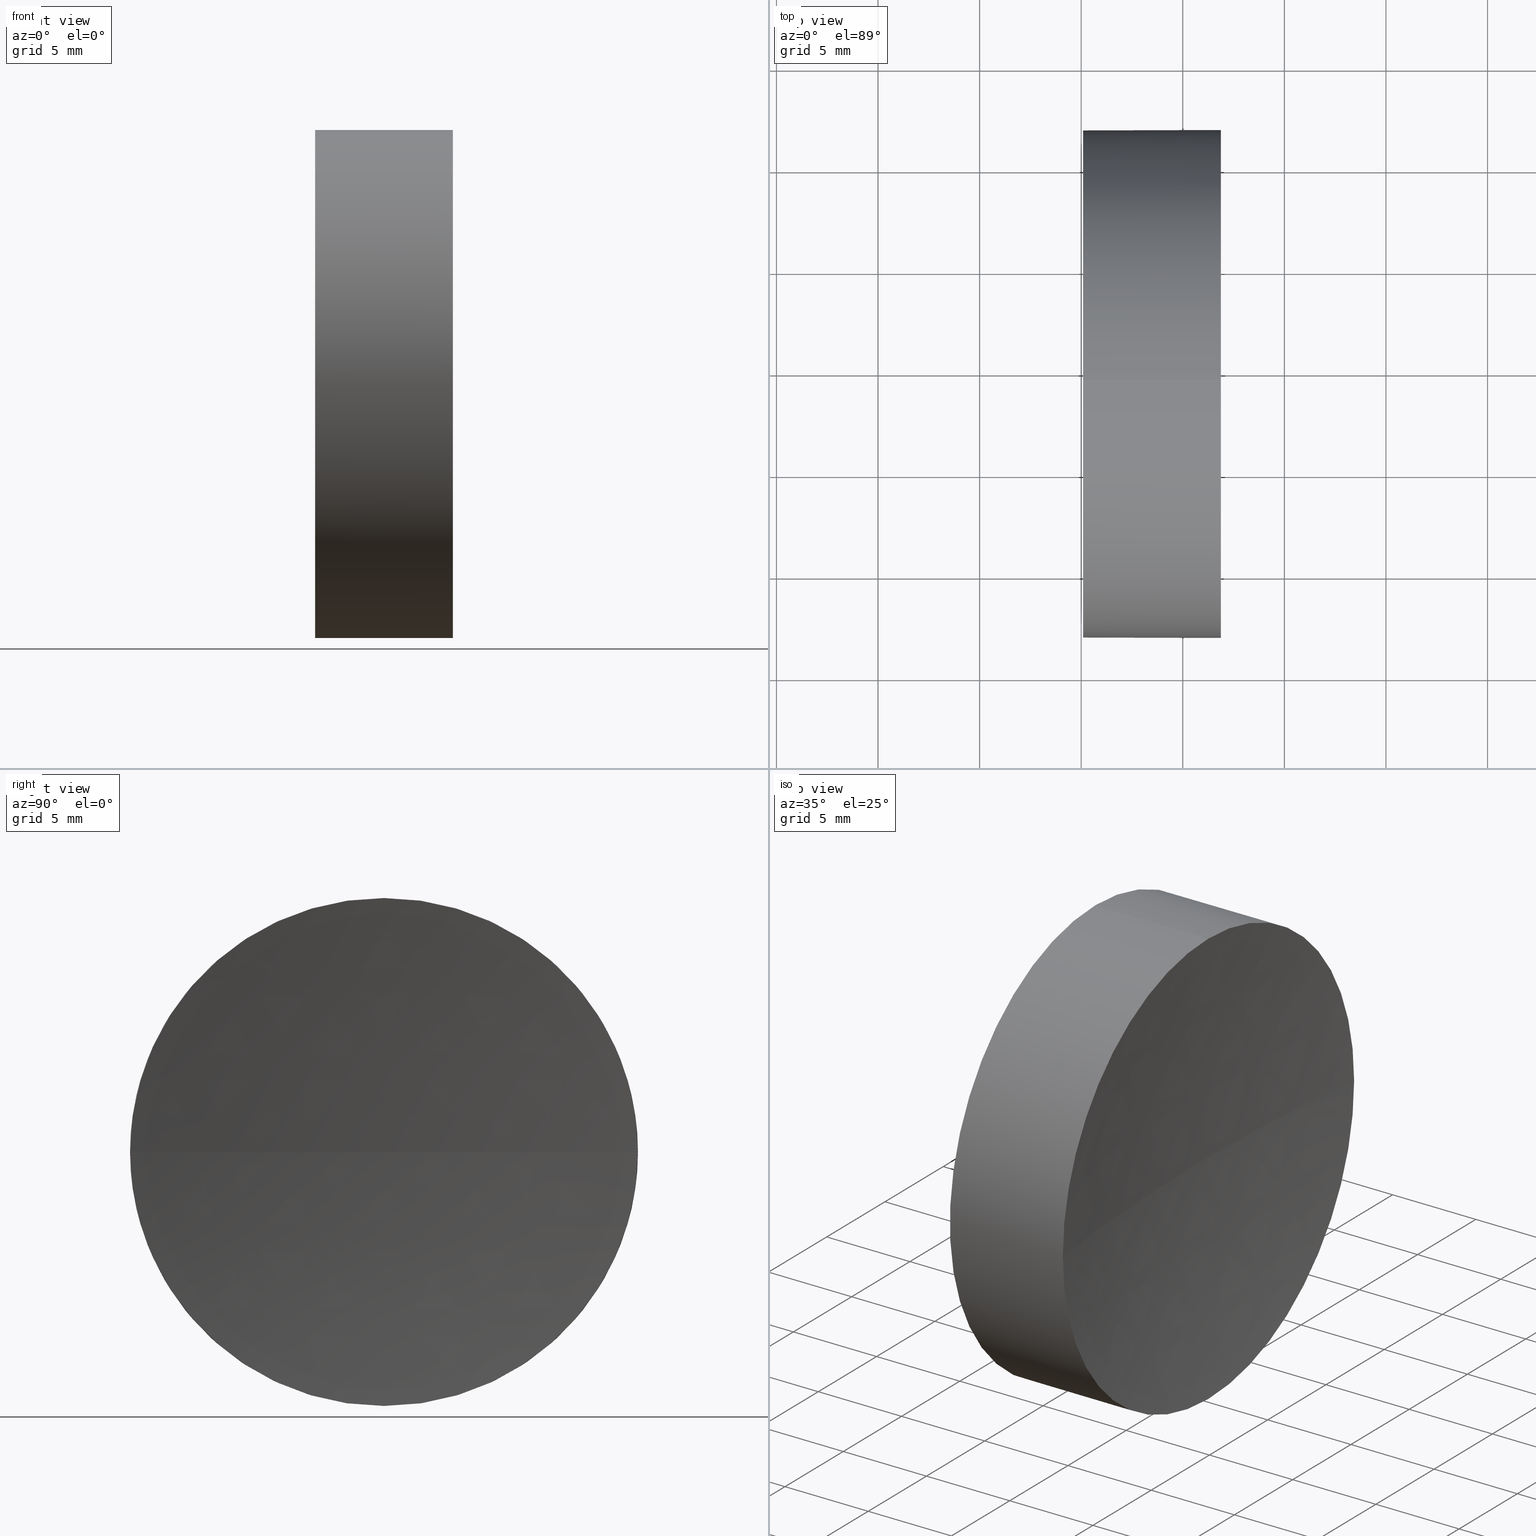
[diagram: canonical four-view strip — front | top / right | iso, engineering-drawing reading convention]
A machine part, canonical four-view strip (front | top / right | iso — engineering-drawing reading convention). The complete STEP part file that produces these views, byte-faithful:
ISO-10303-21;
HEADER;
FILE_DESCRIPTION (( 'STEP AP214' ),
    '1' );
FILE_NAME ('270025.STEP',
    '2019-07-22T07:09:51',
    ( '' ),
    ( '' ),
    'SwSTEP 2.0',
    'SolidWorks 2016',
    '' );
FILE_SCHEMA (( 'AUTOMOTIVE_DESIGN' ));
ENDSEC;

DATA;
#1 = DIRECTION ( 'NONE',  ( 0.0000000000000000000, -1.224646799147353200E-016, 1.000000000000000000 ) ) ;
#2 = FACE_OUTER_BOUND ( 'NONE', #155, .T. ) ;
#3 = SURFACE_STYLE_FILL_AREA ( #64 ) ;
#4 = VERTEX_POINT ( 'NONE', #110 ) ;
#5 = SURFACE_SIDE_STYLE ('',( #3 ) ) ;
#6 = EDGE_CURVE ( 'NONE', #30, #79, #61, .T. ) ;
#7 = DIRECTION ( 'NONE',  ( 1.000000000000000000, 0.0000000000000000000, 0.0000000000000000000 ) ) ;
#8 = FACE_OUTER_BOUND ( 'NONE', #21, .T. ) ;
#9 = APPLICATION_PROTOCOL_DEFINITION ( 'draft international standard', 'automotive_design', 1998, #54 ) ;
#10 = SURFACE_SIDE_STYLE ('',( #139 ) ) ;
#11 = AXIS2_PLACEMENT_3D ( 'NONE', #135, #138, #119 ) ;
#12 = ORIENTED_EDGE ( 'NONE', *, *, #167, .T. ) ;
#13 = DIRECTION ( 'NONE',  ( 0.0000000000000000000, -1.000000000000000000, 0.0000000000000000000 ) ) ;
#14 = CARTESIAN_POINT ( 'NONE',  ( 221.0926552294933700, 69.37802112337244900, 0.0000000000000000000 ) ) ;
#15 = ORIENTED_EDGE ( 'NONE', *, *, #181, .T. ) ;
#16 = CIRCLE ( 'NONE', #53, 12.50000000000002500 ) ;
#17 = PRODUCT_CONTEXT ( 'NONE', #54, 'mechanical' ) ;
#18 = ORIENTED_EDGE ( 'NONE', *, *, #6, .T. ) ;
#19 = PRESENTATION_LAYER_ASSIGNMENT (  '', '', ( #93 ) ) ;
#20 = ADVANCED_FACE ( 'NONE', ( #2 ), #107, .F. ) ;
#21 = EDGE_LOOP ( 'NONE', ( #109, #136, #56, #165, #113 ) ) ;
#22 = CYLINDRICAL_SURFACE ( 'NONE', #57, 12.50000000000001100 ) ;
#23 = DIRECTION ( 'NONE',  ( 0.0000000000000000000, 0.0000000000000000000, 1.000000000000000000 ) ) ;
#24 = CIRCLE ( 'NONE', #162, 99.99999999999998600 ) ;
#25 = CARTESIAN_POINT ( 'NONE',  ( 121.8769810645712300, 69.37802112337243400, 0.0000000000000000000 ) ) ;
#26 = DIRECTION ( 'NONE',  ( 0.0000000000000000000, 0.0000000000000000000, 1.000000000000000000 ) ) ;
#27 = CARTESIAN_POINT ( 'NONE',  ( 121.8769810645712300, 69.37802112337243400, 0.0000000000000000000 ) ) ;
#28 = ORIENTED_EDGE ( 'NONE', *, *, #45, .T. ) ;
#29 =( NAMED_UNIT ( * ) PLANE_ANGLE_UNIT ( ) SI_UNIT ( $, .RADIAN. ) );
#30 = VERTEX_POINT ( 'NONE', #137 ) ;
#31 = CARTESIAN_POINT ( 'NONE',  ( 121.8769810645712300, 69.37802112337243400, 12.50000000000002500 ) ) ;
#32 = CLOSED_SHELL ( 'NONE', ( #157, #20, #96, #150, #173 ) ) ;
#33 = PRODUCT_DEFINITION_SHAPE ( 'NONE', 'NONE',  #55 ) ;
#34 = DIRECTION ( 'NONE',  ( 0.0000000000000000000, -1.000000000000000000, 0.0000000000000000000 ) ) ;
#35 = AXIS2_PLACEMENT_3D ( 'NONE', #161, #128, #52 ) ;
#36 = MECHANICAL_DESIGN_GEOMETRIC_PRESENTATION_REPRESENTATION (  '', ( #93 ), #38 ) ;
#37 = DIRECTION ( 'NONE',  ( -1.000000000000000000, -0.0000000000000000000, -0.0000000000000000000 ) ) ;
#38 =( GEOMETRIC_REPRESENTATION_CONTEXT ( 3 ) GLOBAL_UNCERTAINTY_ASSIGNED_CONTEXT ( ( #176 ) ) GLOBAL_UNIT_ASSIGNED_CONTEXT ( ( #171, #97, #153 ) ) REPRESENTATION_CONTEXT ( 'NONE', 'WORKASPACE' ) );
#39 = PRESENTATION_STYLE_ASSIGNMENT (( #51 ) ) ;
#40 = VERTEX_POINT ( 'NONE', #43 ) ;
#41 = APPLICATION_CONTEXT ( 'automotive_design' ) ;
#42 = EDGE_LOOP ( 'NONE', ( #28, #12 ) ) ;
#43 = CARTESIAN_POINT ( 'NONE',  ( 121.0926552294933700, 69.37802112337244900, 0.0000000000000000000 ) ) ;
#44 = PRESENTATION_LAYER_ASSIGNMENT (  '', '', ( #159 ) ) ;
#45 = EDGE_CURVE ( 'NONE', #146, #4, #132, .T. ) ;
#46 = CIRCLE ( 'NONE', #142, 12.50000000000002500 ) ;
#47 =( GEOMETRIC_REPRESENTATION_CONTEXT ( 3 ) GLOBAL_UNCERTAINTY_ASSIGNED_CONTEXT ( ( #74 ) ) GLOBAL_UNIT_ASSIGNED_CONTEXT ( ( #90, #29, #131 ) ) REPRESENTATION_CONTEXT ( 'NONE', 'WORKASPACE' ) );
#48 = EDGE_CURVE ( 'NONE', #124, #40, #24, .T. ) ;
#49 = CARTESIAN_POINT ( 'NONE',  ( 108.9851430021651000, 69.37802112337243400, 0.0000000000000000000 ) ) ;
#50 = CYLINDRICAL_SURFACE ( 'NONE', #98, 12.50000000000001100 ) ;
#51 = SURFACE_STYLE_USAGE ( .BOTH. , #10 ) ;
#52 = DIRECTION ( 'NONE',  ( -1.000000000000000000, 0.0000000000000000000, 0.0000000000000000000 ) ) ;
#53 = AXIS2_PLACEMENT_3D ( 'NONE', #25, #37, #26 ) ;
#54 = APPLICATION_CONTEXT ( 'automotive_design' ) ;
#55 = PRODUCT_DEFINITION ( 'δ֪', '', #78, #81 ) ;
#56 = ORIENTED_EDGE ( 'NONE', *, *, #45, .F. ) ;
#57 = AXIS2_PLACEMENT_3D ( 'NONE', #158, #83, #86 ) ;
#58 = LINE ( 'NONE', #126, #144 ) ;
#59 = EDGE_CURVE ( 'NONE', #124, #30, #129, .T. ) ;
#60 = FACE_OUTER_BOUND ( 'NONE', #42, .T. ) ;
#61 = CIRCLE ( 'NONE', #11, 12.50000000000002500 ) ;
#62 = AXIS2_PLACEMENT_3D ( 'NONE', #120, #151, #152 ) ;
#63 = CARTESIAN_POINT ( 'NONE',  ( 108.9851430021651000, 69.37802112337243400, -12.50000000000001100 ) ) ;
#64 = FILL_AREA_STYLE ('',( #175 ) ) ;
#65 = VERTEX_POINT ( 'NONE', #31 ) ;
#66 = AXIS2_PLACEMENT_3D ( 'NONE', #118, #106, #183 ) ;
#67 = PLANE ( 'NONE',  #80 ) ;
#68 = EDGE_LOOP ( 'NONE', ( #170, #88, #148, #15 ) ) ;
#69 = CARTESIAN_POINT ( 'NONE',  ( 115.0926555349195200, 69.37802112337243400, 12.49999999999999600 ) ) ;
#70 =( LENGTH_UNIT ( ) NAMED_UNIT ( * ) SI_UNIT ( .MILLI., .METRE. ) );
#71 = SHAPE_DEFINITION_REPRESENTATION ( #33, #104 ) ;
#72 = DIRECTION ( 'NONE',  ( 0.0000000000000000000, 0.0000000000000000000, 1.000000000000000000 ) ) ;
#73 = AXIS2_PLACEMENT_3D ( 'NONE', #99, #156, #154 ) ;
#74 = UNCERTAINTY_MEASURE_WITH_UNIT (LENGTH_MEASURE( 1.000000000000000100E-005 ), #90, 'distance_accuracy_value', 'NONE');
#75 = ORIENTED_EDGE ( 'NONE', *, *, #48, .T. ) ;
#76 =( GEOMETRIC_REPRESENTATION_CONTEXT ( 3 ) GLOBAL_UNCERTAINTY_ASSIGNED_CONTEXT ( ( #133 ) ) GLOBAL_UNIT_ASSIGNED_CONTEXT ( ( #70, #105, #164 ) ) REPRESENTATION_CONTEXT ( 'NONE', 'WORKASPACE' ) );
#77 = PRODUCT ( '270025', '270025', '', ( #17 ) ) ;
#78 = PRODUCT_DEFINITION_FORMATION_WITH_SPECIFIED_SOURCE ( '�κ�', '', #77, .NOT_KNOWN. ) ;
#79 = VERTEX_POINT ( 'NONE', #149 ) ;
#80 = AXIS2_PLACEMENT_3D ( 'NONE', #125, #7, #103 ) ;
#81 = PRODUCT_DEFINITION_CONTEXT ( 'detailed design', #41, 'design' ) ;
#82 = COLOUR_RGB ( '',1.000000000000000000, 1.000000000000000000, 1.000000000000000000 ) ;
#83 = DIRECTION ( 'NONE',  ( -1.000000000000000000, -0.0000000000000000000, -0.0000000000000000000 ) ) ;
#84 = ORIENTED_EDGE ( 'NONE', *, *, #134, .T. ) ;
#85 = DIRECTION ( 'NONE',  ( -1.000000000000000000, -0.0000000000000000000, -0.0000000000000000000 ) ) ;
#86 = DIRECTION ( 'NONE',  ( 0.0000000000000000000, 0.0000000000000000000, 1.000000000000000000 ) ) ;
#87 = CARTESIAN_POINT ( 'NONE',  ( 115.0926555349195200, 69.37802112337243400, 0.0000000000000000000 ) ) ;
#88 = ORIENTED_EDGE ( 'NONE', *, *, #174, .F. ) ;
#89 = AXIS2_PLACEMENT_3D ( 'NONE', #87, #127, #102 ) ;
#90 =( LENGTH_UNIT ( ) NAMED_UNIT ( * ) SI_UNIT ( .MILLI., .METRE. ) );
#91 = PRODUCT_RELATED_PRODUCT_CATEGORY ( 'part', '', ( #77 ) ) ;
#92 = LINE ( 'NONE', #63, #121 ) ;
#93 = STYLED_ITEM ( 'NONE', ( #186 ), #94 ) ;
#94 = MANIFOLD_SOLID_BREP ( '��ת1', #32 ) ;
#95 = DIRECTION ( 'NONE',  ( 0.0000000000000000000, 0.0000000000000000000, 1.000000000000000000 ) ) ;
#96 = ADVANCED_FACE ( 'NONE', ( #169 ), #179, .F. ) ;
#97 =( NAMED_UNIT ( * ) PLANE_ANGLE_UNIT ( ) SI_UNIT ( $, .RADIAN. ) );
#98 = AXIS2_PLACEMENT_3D ( 'NONE', #49, #85, #160 ) ;
#99 = CARTESIAN_POINT ( 'NONE',  ( 121.8769810645712300, 69.37802112337243400, 0.0000000000000000000 ) ) ;
#100 = CIRCLE ( 'NONE', #35, 99.99999999999998600 ) ;
#101 = ORIENTED_EDGE ( 'NONE', *, *, #59, .F. ) ;
#102 = DIRECTION ( 'NONE',  ( 0.0000000000000000000, 0.0000000000000000000, 1.000000000000000000 ) ) ;
#103 = DIRECTION ( 'NONE',  ( 0.0000000000000000000, 0.0000000000000000000, -1.000000000000000000 ) ) ;
#104 = ADVANCED_BREP_SHAPE_REPRESENTATION ( '270025', ( #94, #66 ), #76 ) ;
#105 =( NAMED_UNIT ( * ) PLANE_ANGLE_UNIT ( ) SI_UNIT ( $, .RADIAN. ) );
#106 = DIRECTION ( 'NONE',  ( 0.0000000000000000000, 0.0000000000000000000, 1.000000000000000000 ) ) ;
#107 = SPHERICAL_SURFACE ( 'NONE', #145, 99.99999999999998600 ) ;
#108 = FACE_OUTER_BOUND ( 'NONE', #180, .T. ) ;
#109 = ORIENTED_EDGE ( 'NONE', *, *, #59, .T. ) ;
#110 = CARTESIAN_POINT ( 'NONE',  ( 115.0926555349195200, 69.37802112337243400, -12.49999999999999600 ) ) ;
#111 = CARTESIAN_POINT ( 'NONE',  ( 221.0926552294933700, 69.37802112337244900, 0.0000000000000000000 ) ) ;
#112 = DIRECTION ( 'NONE',  ( -1.000000000000000000, -0.0000000000000000000, -0.0000000000000000000 ) ) ;
#113 = ORIENTED_EDGE ( 'NONE', *, *, #174, .T. ) ;
#114 = FILL_AREA_STYLE ('',( #117 ) ) ;
#115 = ORIENTED_EDGE ( 'NONE', *, *, #185, .T. ) ;
#116 = EDGE_CURVE ( 'NONE', #30, #4, #92, .T. ) ;
#117 = FILL_AREA_STYLE_COLOUR ( '', #82 ) ;
#118 = CARTESIAN_POINT ( 'NONE',  ( 0.0000000000000000000, 0.0000000000000000000, 0.0000000000000000000 ) ) ;
#119 = DIRECTION ( 'NONE',  ( 0.0000000000000000000, 0.0000000000000000000, 1.000000000000000000 ) ) ;
#120 = CARTESIAN_POINT ( 'NONE',  ( 115.0926555349195200, 69.37802112337243400, 0.0000000000000000000 ) ) ;
#121 = VECTOR ( 'NONE', #112, 1000.000000000000000 ) ;
#122 = ORIENTED_EDGE ( 'NONE', *, *, #167, .F. ) ;
#123 = AXIS2_PLACEMENT_3D ( 'NONE', #111, #23, #34 ) ;
#124 = VERTEX_POINT ( 'NONE', #178 ) ;
#125 = CARTESIAN_POINT ( 'NONE',  ( 115.0926555349195200, 69.37802112337243400, 0.0000000000000000000 ) ) ;
#126 = CARTESIAN_POINT ( 'NONE',  ( 108.9851430021651000, 69.37802112337243400, 12.50000000000001100 ) ) ;
#127 = DIRECTION ( 'NONE',  ( -1.000000000000000000, -0.0000000000000000000, -0.0000000000000000000 ) ) ;
#128 = DIRECTION ( 'NONE',  ( 0.0000000000000000000, 0.0000000000000000000, -1.000000000000000000 ) ) ;
#129 = CIRCLE ( 'NONE', #73, 12.50000000000002500 ) ;
#130 = ORIENTED_EDGE ( 'NONE', *, *, #181, .F. ) ;
#131 =( NAMED_UNIT ( * ) SI_UNIT ( $, .STERADIAN. ) SOLID_ANGLE_UNIT ( ) );
#132 = CIRCLE ( 'NONE', #62, 12.49999999999999600 ) ;
#133 = UNCERTAINTY_MEASURE_WITH_UNIT (LENGTH_MEASURE( 1.000000000000000100E-005 ), #70, 'distance_accuracy_value', 'NONE');
#134 = EDGE_CURVE ( 'NONE', #79, #65, #16, .T. ) ;
#135 = CARTESIAN_POINT ( 'NONE',  ( 121.8769810645712300, 69.37802112337243400, 0.0000000000000000000 ) ) ;
#136 = ORIENTED_EDGE ( 'NONE', *, *, #116, .T. ) ;
#137 = CARTESIAN_POINT ( 'NONE',  ( 121.8769810645712300, 69.37802112337243400, -12.50000000000002500 ) ) ;
#138 = DIRECTION ( 'NONE',  ( -1.000000000000000000, -0.0000000000000000000, -0.0000000000000000000 ) ) ;
#139 = SURFACE_STYLE_FILL_AREA ( #114 ) ;
#140 = MECHANICAL_DESIGN_GEOMETRIC_PRESENTATION_REPRESENTATION (  '', ( #159 ), #47 ) ;
#141 = ORIENTED_EDGE ( 'NONE', *, *, #6, .F. ) ;
#142 = AXIS2_PLACEMENT_3D ( 'NONE', #27, #184, #72 ) ;
#143 = DIRECTION ( 'NONE',  ( -1.000000000000000000, -0.0000000000000000000, -0.0000000000000000000 ) ) ;
#144 = VECTOR ( 'NONE', #143, 1000.000000000000000 ) ;
#145 = AXIS2_PLACEMENT_3D ( 'NONE', #14, #95, #13 ) ;
#146 = VERTEX_POINT ( 'NONE', #69 ) ;
#147 = APPLICATION_PROTOCOL_DEFINITION ( 'draft international standard', 'automotive_design', 1998, #41 ) ;
#148 = ORIENTED_EDGE ( 'NONE', *, *, #134, .F. ) ;
#149 = CARTESIAN_POINT ( 'NONE',  ( 121.8769810645712300, 56.87802112337242700, 0.0000000000000000000 ) ) ;
#150 = ADVANCED_FACE ( 'NONE', ( #108 ), #50, .T. ) ;
#151 = DIRECTION ( 'NONE',  ( -1.000000000000000000, -0.0000000000000000000, -0.0000000000000000000 ) ) ;
#152 = DIRECTION ( 'NONE',  ( 0.0000000000000000000, 0.0000000000000000000, 1.000000000000000000 ) ) ;
#153 =( NAMED_UNIT ( * ) SI_UNIT ( $, .STERADIAN. ) SOLID_ANGLE_UNIT ( ) );
#154 = DIRECTION ( 'NONE',  ( 0.0000000000000000000, 0.0000000000000000000, 1.000000000000000000 ) ) ;
#155 = EDGE_LOOP ( 'NONE', ( #101, #75, #130, #141 ) ) ;
#156 = DIRECTION ( 'NONE',  ( -1.000000000000000000, -0.0000000000000000000, -0.0000000000000000000 ) ) ;
#157 = ADVANCED_FACE ( 'NONE', ( #8 ), #22, .T. ) ;
#158 = CARTESIAN_POINT ( 'NONE',  ( 108.9851430021651000, 69.37802112337243400, 0.0000000000000000000 ) ) ;
#159 = STYLED_ITEM ( 'NONE', ( #39 ), #104 ) ;
#160 = DIRECTION ( 'NONE',  ( 0.0000000000000000000, 0.0000000000000000000, 1.000000000000000000 ) ) ;
#161 = CARTESIAN_POINT ( 'NONE',  ( 221.0926552294933700, 69.37802112337244900, 0.0000000000000000000 ) ) ;
#162 = AXIS2_PLACEMENT_3D ( 'NONE', #166, #1, #168 ) ;
#163 = ORIENTED_EDGE ( 'NONE', *, *, #116, .F. ) ;
#164 =( NAMED_UNIT ( * ) SI_UNIT ( $, .STERADIAN. ) SOLID_ANGLE_UNIT ( ) );
#165 = ORIENTED_EDGE ( 'NONE', *, *, #185, .F. ) ;
#166 = CARTESIAN_POINT ( 'NONE',  ( 221.0926552294933700, 69.37802112337244900, 0.0000000000000000000 ) ) ;
#167 = EDGE_CURVE ( 'NONE', #4, #146, #182, .T. ) ;
#168 = DIRECTION ( 'NONE',  ( 0.0000000000000000000, -1.000000000000000000, -1.224646799147353200E-016 ) ) ;
#169 = FACE_OUTER_BOUND ( 'NONE', #68, .T. ) ;
#170 = ORIENTED_EDGE ( 'NONE', *, *, #48, .F. ) ;
#171 =( LENGTH_UNIT ( ) NAMED_UNIT ( * ) SI_UNIT ( .MILLI., .METRE. ) );
#172 = COLOUR_RGB ( '',1.000000000000000000, 1.000000000000000000, 1.000000000000000000 ) ;
#173 = ADVANCED_FACE ( 'NONE', ( #60 ), #67, .F. ) ;
#174 = EDGE_CURVE ( 'NONE', #65, #124, #46, .T. ) ;
#175 = FILL_AREA_STYLE_COLOUR ( '', #172 ) ;
#176 = UNCERTAINTY_MEASURE_WITH_UNIT (LENGTH_MEASURE( 1.000000000000000100E-005 ), #171, 'distance_accuracy_value', 'NONE');
#177 = SURFACE_STYLE_USAGE ( .BOTH. , #5 ) ;
#178 = CARTESIAN_POINT ( 'NONE',  ( 121.8769810645712300, 81.87802112337244900, 1.530808498934192500E-015 ) ) ;
#179 = SPHERICAL_SURFACE ( 'NONE', #123, 99.99999999999998600 ) ;
#180 = EDGE_LOOP ( 'NONE', ( #163, #18, #84, #115, #122 ) ) ;
#181 = EDGE_CURVE ( 'NONE', #79, #40, #100, .T. ) ;
#182 = CIRCLE ( 'NONE', #89, 12.49999999999999600 ) ;
#183 = DIRECTION ( 'NONE',  ( 1.000000000000000000, 0.0000000000000000000, 0.0000000000000000000 ) ) ;
#184 = DIRECTION ( 'NONE',  ( -1.000000000000000000, -0.0000000000000000000, -0.0000000000000000000 ) ) ;
#185 = EDGE_CURVE ( 'NONE', #65, #146, #58, .T. ) ;
#186 = PRESENTATION_STYLE_ASSIGNMENT (( #177 ) ) ;
ENDSEC;
END-ISO-10303-21;
